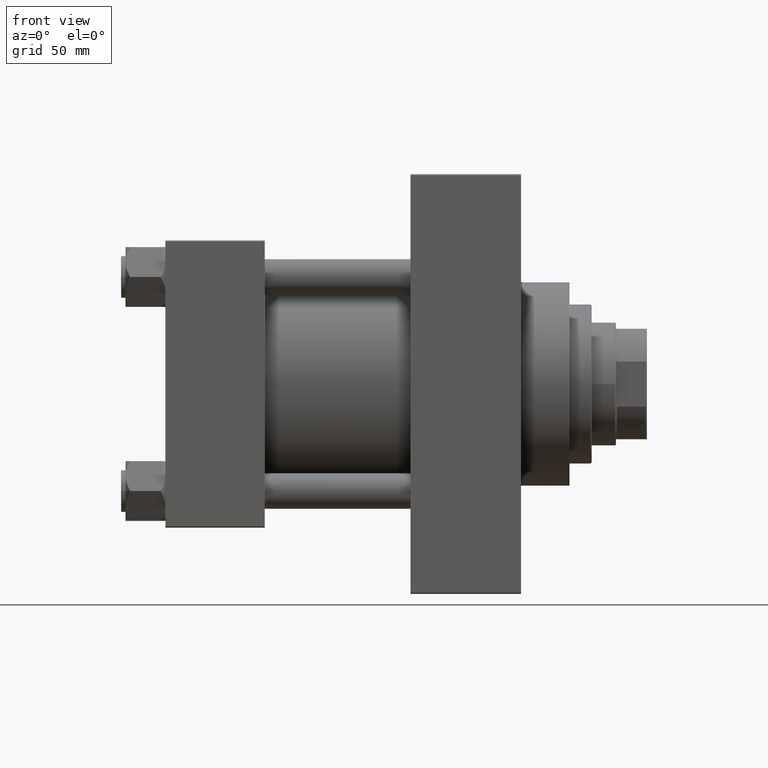
[diagram: clean part render]
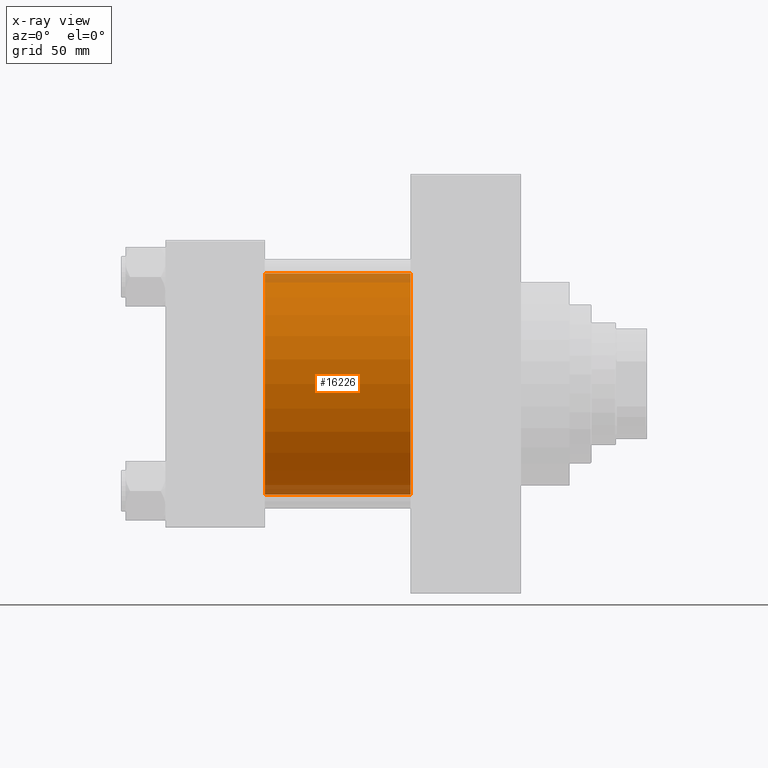
[diagram: x-ray — body ghosted, one internal face saturated and labeled with its STEP entity id]
A machine part, front view, then the same camera in x-ray: the body is ghosted and one INTERNAL B-rep face — a face not visible from any outside direction — is saturated and labeled: STEP entity #16226.
In plain terms, the highlighted cylindrical surface (partial cylindrical patch) has radius 50 mm, axis along (-1, -0, -0).
Its self-contained STEP definition (entity closure, byte-faithful):
#251 = CARTESIAN_POINT ( 'NONE',  ( 111.0000000000000000, 3.521148781771555838E-15, -50.00000000000000000 ) ) ;
#254 = EDGE_CURVE ( 'NONE', #22092, #43737, #33571, .T. ) ;
#2397 = VERTEX_POINT ( 'NONE', #41858 ) ;
#3266 = CARTESIAN_POINT ( 'NONE',  ( 111.0000000000000000, 3.521148781771555838E-15, -50.00000000000000000 ) ) ;
#6191 = CARTESIAN_POINT ( 'NONE',  ( 111.0000000000000000, -2.602085213965210642E-15, 0.000000000000000000 ) ) ;
#7385 = VERTEX_POINT ( 'NONE', #21906 ) ;
#8476 = EDGE_CURVE ( 'NONE', #2397, #22092, #9855, .T. ) ;
#9855 = CIRCLE ( 'NONE', #36836, 50.00000000000000000 ) ;
#10086 = AXIS2_PLACEMENT_3D ( 'NONE', #23075, #22591, #32369 ) ;
#10918 = EDGE_CURVE ( 'NONE', #7385, #43737, #36939, .T. ) ;
#12141 = DIRECTION ( 'NONE',  ( -1.000000000000000000, -0.000000000000000000, -0.000000000000000000 ) ) ;
#13399 = DIRECTION ( 'NONE',  ( 1.000000000000000000, 0.000000000000000000, 0.000000000000000000 ) ) ;
#15365 = FACE_OUTER_BOUND ( 'NONE', #20378, .T. ) ;
#15385 = ORIENTED_EDGE ( 'NONE', *, *, #10918, .F. ) ;
#16226 = ADVANCED_FACE ( 'NONE', ( #15365 ), #25746, .F. ) ;
#19484 = VECTOR ( 'NONE', #12141, 1000.000000000000000 ) ;
#20378 = EDGE_LOOP ( 'NONE', ( #37012, #28049, #15385, #45256 ) ) ;
#21098 = DIRECTION ( 'NONE',  ( 0.000000000000000000, 0.000000000000000000, -1.000000000000000000 ) ) ;
#21906 = CARTESIAN_POINT ( 'NONE',  ( 45.00000000000000000, -2.602085213965210642E-15, 50.00000000000000000 ) ) ;
#22092 = VERTEX_POINT ( 'NONE', #3266 ) ;
#22591 = DIRECTION ( 'NONE',  ( -1.000000000000000000, -0.000000000000000000, -0.000000000000000000 ) ) ;
#23075 = CARTESIAN_POINT ( 'NONE',  ( 111.0000000000000000, -2.602085213965210642E-15, 0.000000000000000000 ) ) ;
#24065 = DIRECTION ( 'NONE',  ( 1.000000000000000000, 0.000000000000000000, 0.000000000000000000 ) ) ;
#24915 = EDGE_CURVE ( 'NONE', #2397, #7385, #34357, .T. ) ;
#25353 = AXIS2_PLACEMENT_3D ( 'NONE', #34900, #13399, #21098 ) ;
#25746 = CYLINDRICAL_SURFACE ( 'NONE', #10086, 50.00000000000000000 ) ;
#28049 = ORIENTED_EDGE ( 'NONE', *, *, #254, .T. ) ;
#32369 = DIRECTION ( 'NONE',  ( 0.000000000000000000, 0.000000000000000000, 1.000000000000000000 ) ) ;
#33571 = LINE ( 'NONE', #251, #39100 ) ;
#34357 = LINE ( 'NONE', #38218, #19484 ) ;
#34467 = DIRECTION ( 'NONE',  ( 0.000000000000000000, 0.000000000000000000, -1.000000000000000000 ) ) ;
#34900 = CARTESIAN_POINT ( 'NONE',  ( 45.00000000000000000, -2.602085213965210642E-15, 0.000000000000000000 ) ) ;
#36836 = AXIS2_PLACEMENT_3D ( 'NONE', #6191, #24065, #34467 ) ;
#36939 = CIRCLE ( 'NONE', #25353, 50.00000000000000000 ) ;
#37012 = ORIENTED_EDGE ( 'NONE', *, *, #8476, .T. ) ;
#38218 = CARTESIAN_POINT ( 'NONE',  ( 111.0000000000000000, -2.602085213965210642E-15, 50.00000000000000000 ) ) ;
#39100 = VECTOR ( 'NONE', #40333, 1000.000000000000000 ) ;
#40333 = DIRECTION ( 'NONE',  ( -1.000000000000000000, -0.000000000000000000, -0.000000000000000000 ) ) ;
#41858 = CARTESIAN_POINT ( 'NONE',  ( 111.0000000000000000, -2.602085213965210642E-15, 50.00000000000000000 ) ) ;
#43737 = VERTEX_POINT ( 'NONE', #45928 ) ;
#45256 = ORIENTED_EDGE ( 'NONE', *, *, #24915, .F. ) ;
#45928 = CARTESIAN_POINT ( 'NONE',  ( 45.00000000000000000, 3.521148781771555838E-15, -50.00000000000000000 ) ) ;